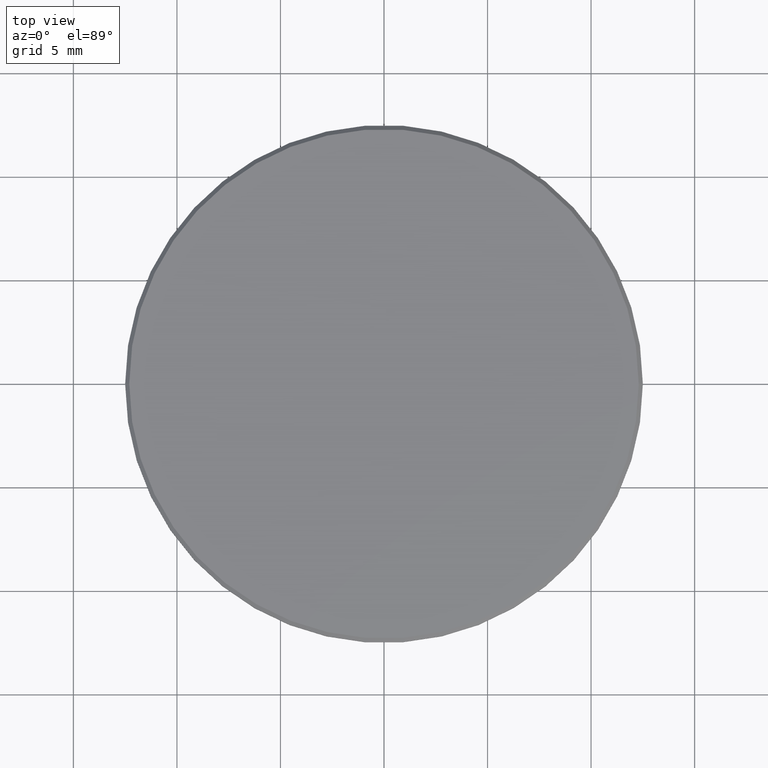
[diagram: clean part render]
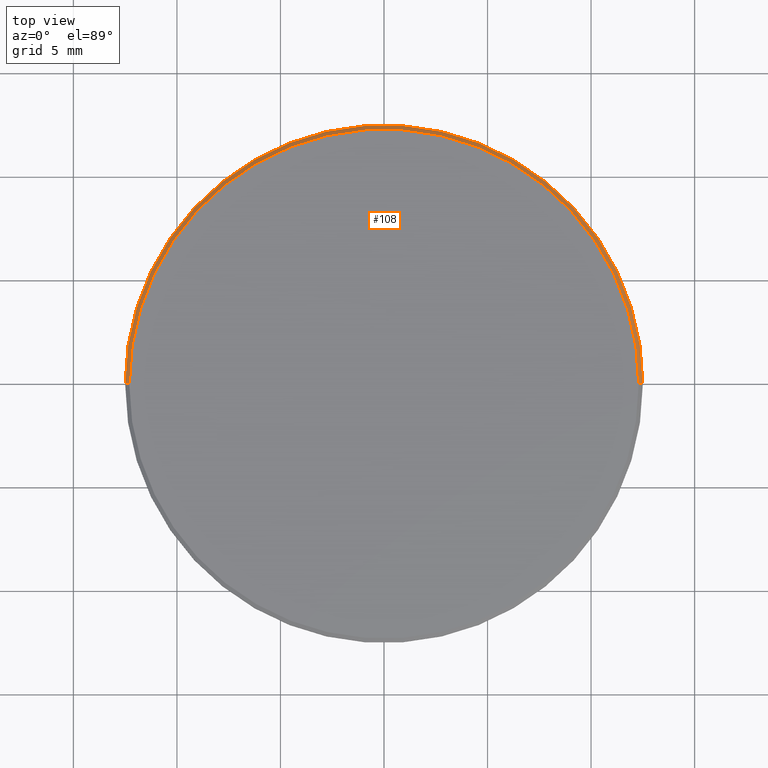
[diagram: same view with one face highlighted and labeled with its STEP entity id]
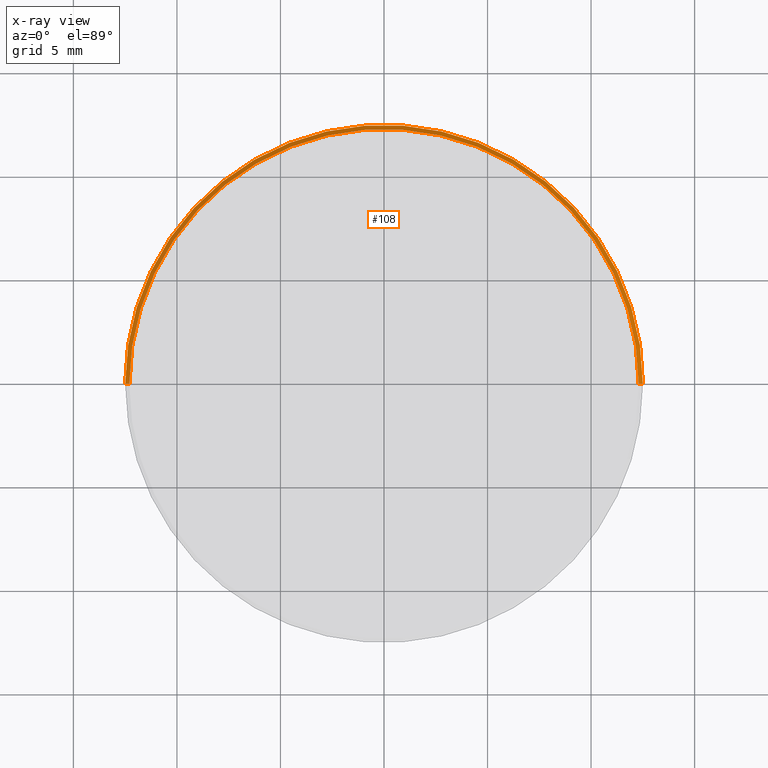
[diagram: x-ray of the same camera — body ghosted, the highlighted face saturated]
A machine part, top view. The second image highlights one B-rep face of the part: STEP entity #108.
The next image is the same camera in x-ray: the body ghosted, the highlighted face saturated — about 0% of this face is hidden behind the body in this view.
In plain terms, the highlighted conical surface has half-angle 45 deg.
Its self-contained STEP definition (entity closure, byte-faithful):
#1 = ORIENTED_EDGE ( 'NONE', *, *, #40, .F. ) ;
#4 = CARTESIAN_POINT ( 'NONE',  ( 0.000000000000000000, 0.000000000000000000, 1.000000000000000000 ) ) ;
#10 = CARTESIAN_POINT ( 'NONE',  ( 12.29999999999999893, 1.518562030942717967E-15, 1.000000000000000000 ) ) ;
#14 = CIRCLE ( 'NONE', #162, 12.29999999999999893 ) ;
#18 = DIRECTION ( 'NONE',  ( 1.000000000000000000, 0.000000000000000000, 0.000000000000000000 ) ) ;
#20 = AXIS2_PLACEMENT_3D ( 'NONE', #63, #134, #18 ) ;
#23 = VERTEX_POINT ( 'NONE', #94 ) ;
#29 = EDGE_CURVE ( 'NONE', #213, #23, #39, .T. ) ;
#39 = LINE ( 'NONE', #182, #87 ) ;
#40 = EDGE_CURVE ( 'NONE', #115, #23, #138, .T. ) ;
#44 = DIRECTION ( 'NONE',  ( -1.000000000000000000, 0.000000000000000000, 0.000000000000000000 ) ) ;
#50 = AXIS2_PLACEMENT_3D ( 'NONE', #86, #157, #44 ) ;
#63 = CARTESIAN_POINT ( 'NONE',  ( 0.000000000000000000, 0.000000000000000000, 0.8000000000000029310 ) ) ;
#70 = FACE_OUTER_BOUND ( 'NONE', #223, .T. ) ;
#86 = CARTESIAN_POINT ( 'NONE',  ( 0.000000000000000000, 0.000000000000000000, 1.000000000000000000 ) ) ;
#87 = VECTOR ( 'NONE', #226, 1000.000000000000000 ) ;
#94 = CARTESIAN_POINT ( 'NONE',  ( 12.50000000000000000, 1.530808498934191521E-15, 0.8000000000000029310 ) ) ;
#99 = CARTESIAN_POINT ( 'NONE',  ( -12.29999999999999893, 0.000000000000000000, 1.000000000000000000 ) ) ;
#108 = ADVANCED_FACE ( 'NONE', ( #70 ), #177, .T. ) ;
#110 = EDGE_CURVE ( 'NONE', #224, #115, #172, .T. ) ;
#115 = VERTEX_POINT ( 'NONE', #190 ) ;
#128 = ORIENTED_EDGE ( 'NONE', *, *, #233, .F. ) ;
#130 = ORIENTED_EDGE ( 'NONE', *, *, #29, .T. ) ;
#134 = DIRECTION ( 'NONE',  ( 0.000000000000000000, 0.000000000000000000, -1.000000000000000000 ) ) ;
#138 = CIRCLE ( 'NONE', #20, 12.50000000000000000 ) ;
#141 = CARTESIAN_POINT ( 'NONE',  ( -12.29999999999999893, 0.000000000000000000, 1.000000000000000000 ) ) ;
#153 = DIRECTION ( 'NONE',  ( 0.000000000000000000, 0.000000000000000000, 1.000000000000000000 ) ) ;
#155 = DIRECTION ( 'NONE',  ( -0.7071067811865566766, 0.000000000000000000, -0.7071067811865383579 ) ) ;
#157 = DIRECTION ( 'NONE',  ( 0.000000000000000000, 0.000000000000000000, -1.000000000000000000 ) ) ;
#162 = AXIS2_PLACEMENT_3D ( 'NONE', #4, #153, #227 ) ;
#172 = LINE ( 'NONE', #141, #211 ) ;
#177 = CONICAL_SURFACE ( 'NONE', #50, 12.29999999999999893, 0.7853981633974612686 ) ;
#182 = CARTESIAN_POINT ( 'NONE',  ( 12.29999999999999893, 1.506315562951244216E-15, 1.000000000000000000 ) ) ;
#190 = CARTESIAN_POINT ( 'NONE',  ( -12.50000000000000000, 0.000000000000000000, 0.8000000000000029310 ) ) ;
#211 = VECTOR ( 'NONE', #155, 1000.000000000000000 ) ;
#213 = VERTEX_POINT ( 'NONE', #10 ) ;
#223 = EDGE_LOOP ( 'NONE', ( #128, #130, #1, #234 ) ) ;
#224 = VERTEX_POINT ( 'NONE', #99 ) ;
#226 = DIRECTION ( 'NONE',  ( 0.7071067811865566766, 8.659560562355045024E-17, -0.7071067811865383579 ) ) ;
#227 = DIRECTION ( 'NONE',  ( 1.000000000000000000, 0.000000000000000000, 0.000000000000000000 ) ) ;
#233 = EDGE_CURVE ( 'NONE', #213, #224, #14, .T. ) ;
#234 = ORIENTED_EDGE ( 'NONE', *, *, #110, .F. ) ;